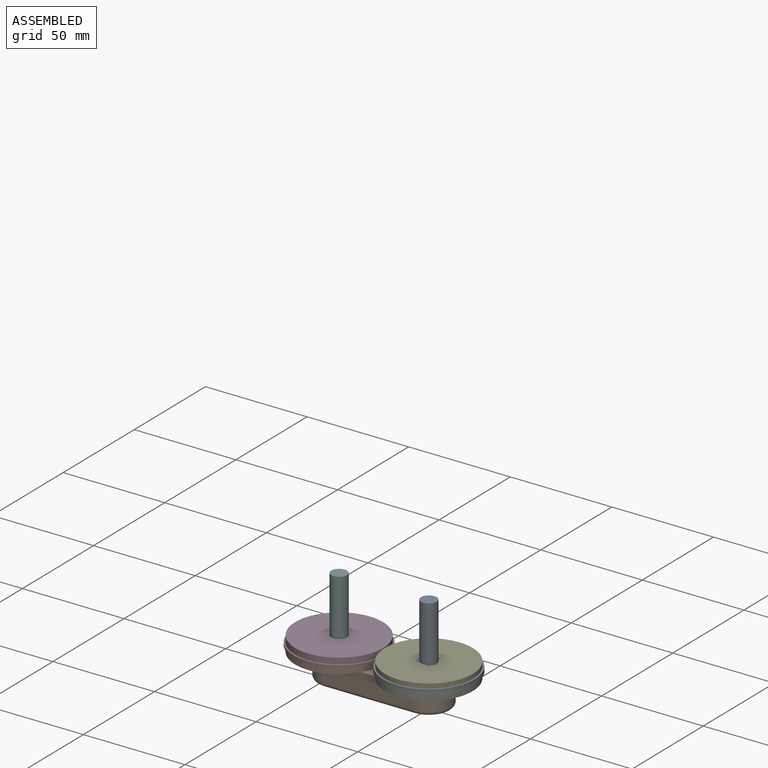
[diagram: assembled view]
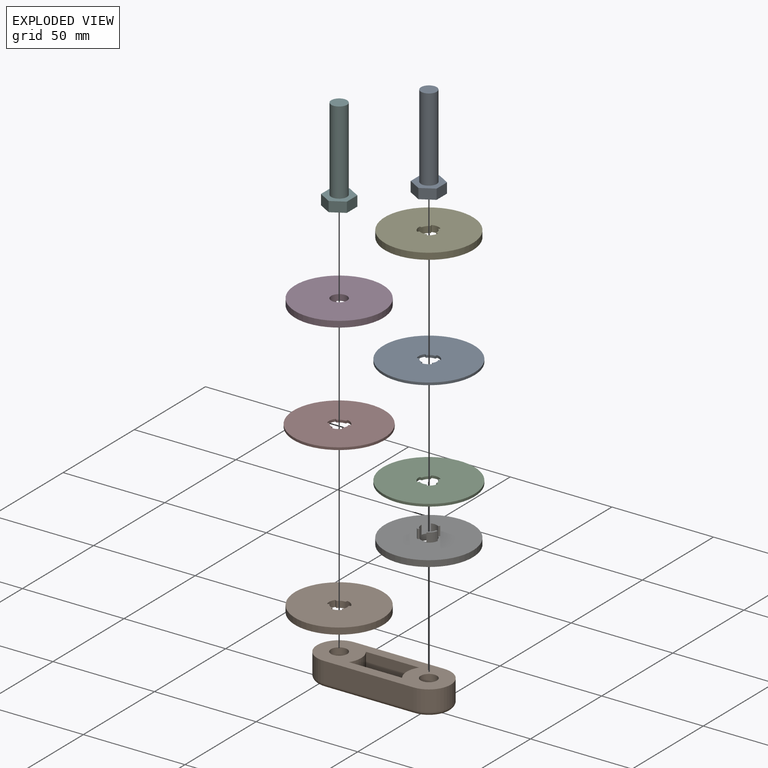
[diagram: exploded view]
GUIDED TOUR — MATED ASSEMBLY (Onshape document 2849e8b8282144786c56f79b, AutoMate assembly 2849e8b8282144786c56f79b_fd48bfa7a9732972396c4c1c_5a6b8118c9de24b8586b6d2c_default)

This assembly has 10 components, labeled P0..P9 below (a component is one placed occurrence of a part; the same part can appear more than once), held together by 9 mates. A mate is a constraint between two components; its type names the relative motion it leaves free:
  FASTENED — locks the two components together rigidly (no relative motion),
  REVOLUTE — leaves rotation about the listed axis free (a hinge).
Axis/direction vectors are unit vectors and 'through' points are millimeter coordinates, both in the assembly's world frame.

MATES
  1. REVOLUTE "Revolute 2": P6 <-> P1, axis (0.000, 0.000, -1.000) through (0.00, 0.00, 11.00) mm
  2. REVOLUTE "Revolute 5": P2 <-> P6, axis (0.000, 0.000, -1.000) through (0.00, 0.00, 14.00) mm
  3. REVOLUTE "Revolute 7": P0 <-> P2, axis (0.000, 0.000, -1.000) through (0.00, 0.00, 15.20) mm
  4. REVOLUTE "Revolute 6": P2 <-> P4, axis (0.000, 0.000, 1.000) through (0.00, 0.00, 15.20) mm
  5. REVOLUTE "Revolute 1": P9 <-> P1, axis (0.000, 0.000, -1.000) through (-44.15, 0.00, 11.00) mm
  6. FASTENED "Fastened 1": P8 <-> P1, direction (0.000, 0.000, 1.000) through (0.00, 0.00, 5.00) mm
  7. REVOLUTE "Revolute 3": P3 <-> P7, axis (0.000, 0.000, -1.000) through (-44.15, 0.00, 15.35) mm
  8. REVOLUTE "Revolute 4": P9 <-> P7, axis (0.000, 0.000, 1.000) through (-44.15, 0.00, 14.15) mm
  9. FASTENED "Fastened 2": P5 <-> P1, direction (0.000, 0.000, 1.000) through (-44.15, 0.00, 5.00) mm

ASSEMBLY ORDER
  1. P1 — the base component [order heuristic]
  2. P9 — core [order heuristic]
  3. P6 — core [order heuristic]
  4. P2 [order verified]
  5. P7 [order verified]
  6. P0 [order verified]
  7. P3 — core [order heuristic]
  8. P4 [order verified]
  9. P5 — core [order heuristic]
  10. P8 — core [order heuristic]
(P2, P4, P7 verified with a relaxed clearance tolerance: the source model stores slight part interference there.)
Order-tag legend:
  [order verified] — this step's position reverses a verified removal order: the component was checked to insert without passing through the ones already placed.
  [order heuristic] — the first 6 components form the assembly's core: parts whose collision-free extraction could not be verified, listed in mate-graph order.

Of the 10 components, 2 carry the full construction recipe — the FeatureScript program that regenerates the part's solid from scratch; the rest are supplied as boundary geometry only.
Each toured component is shown spotlighted twice — in the assembled view, then in the exploded view, where a leader line traces a displaced component back to its assembled socket (saturated green if recipe-attached, orange if geometry-only; every other component desaturated gray) — followed by its recipe or geometry summary and the mates that hold it.
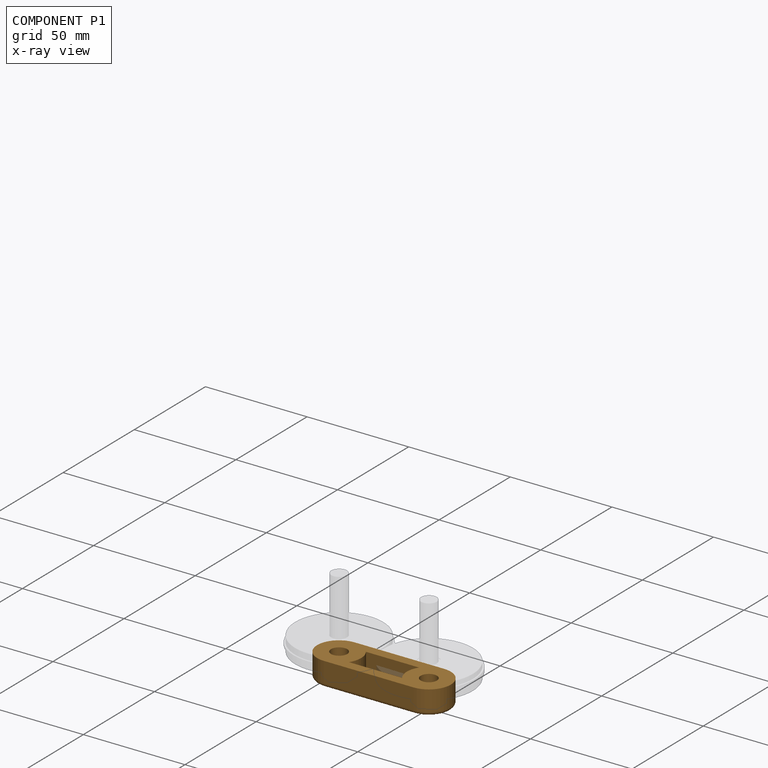
[diagram: component P1 — x-ray view]
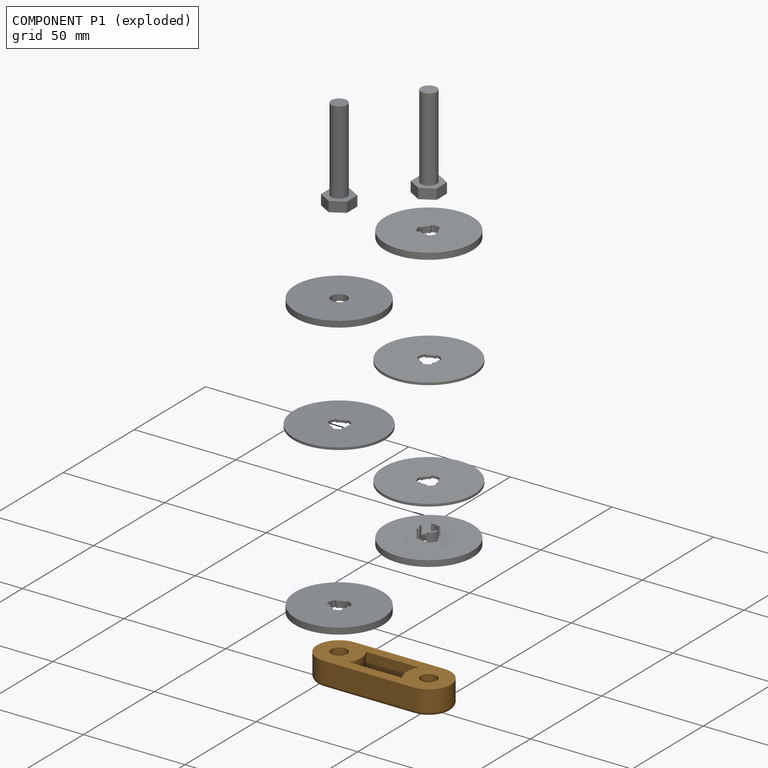
[diagram: component P1 — exploded]
COMPONENT P1 — geometry summary (no construction recipe available for this part):
  bounding box: 67.6 x 23.4 x 12.0 mm
  B-rep topology: 1 solid, 34 faces, 168 edges
  volume: 9899 mm^3 (52% of its bounding box)
  symmetry: 2-fold rotationally symmetric about the z axis; mirror-symmetric across its x mid-plane, y mid-plane
Held by: REVOLUTE mate "Revolute 2" to P6; REVOLUTE mate "Revolute 1" to P9; FASTENED mate "Fastened 1" to P8; FASTENED mate "Fastened 2" to P5.
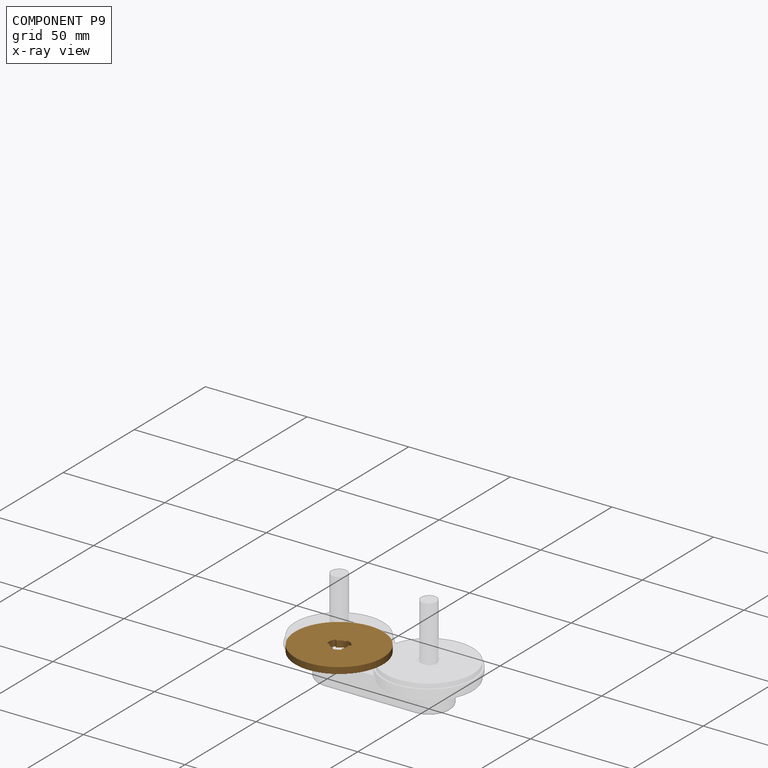
[diagram: component P9 — x-ray view]
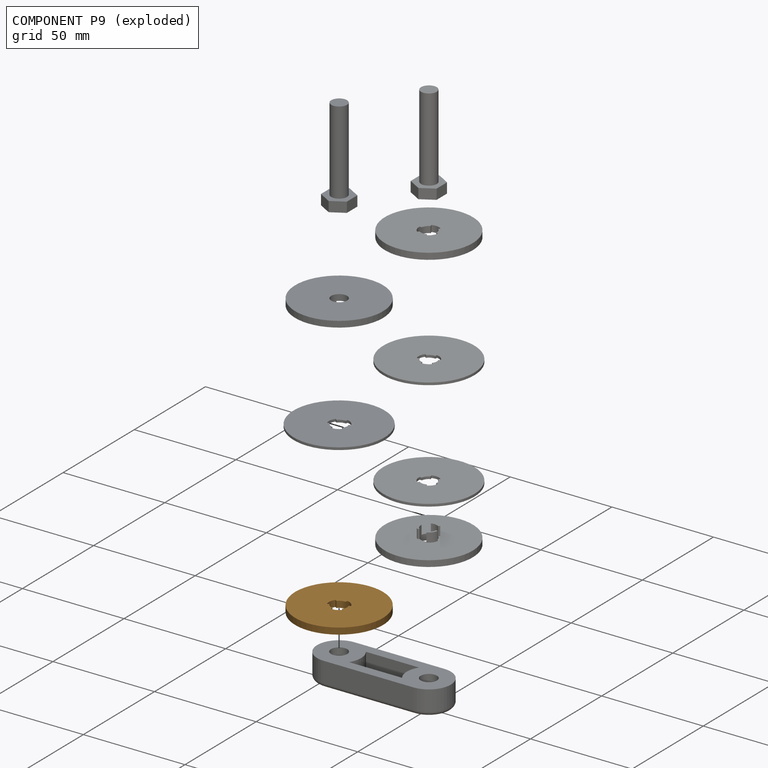
[diagram: component P9 — exploded]
COMPONENT P9 — geometry summary (no construction recipe available for this part):
  bounding box: 43.3 x 43.3 x 3.2 mm
  B-rep topology: 1 solid, 15 faces, 78 edges
  volume: 4430 mm^3 (75% of its bounding box)
  symmetry: 2-fold rotationally symmetric about the y axis; 3-fold rotationally symmetric about the z axis; mirror-symmetric across its x mid-plane, z mid-plane
Held by: REVOLUTE mate "Revolute 1" to P1; REVOLUTE mate "Revolute 4" to P7.
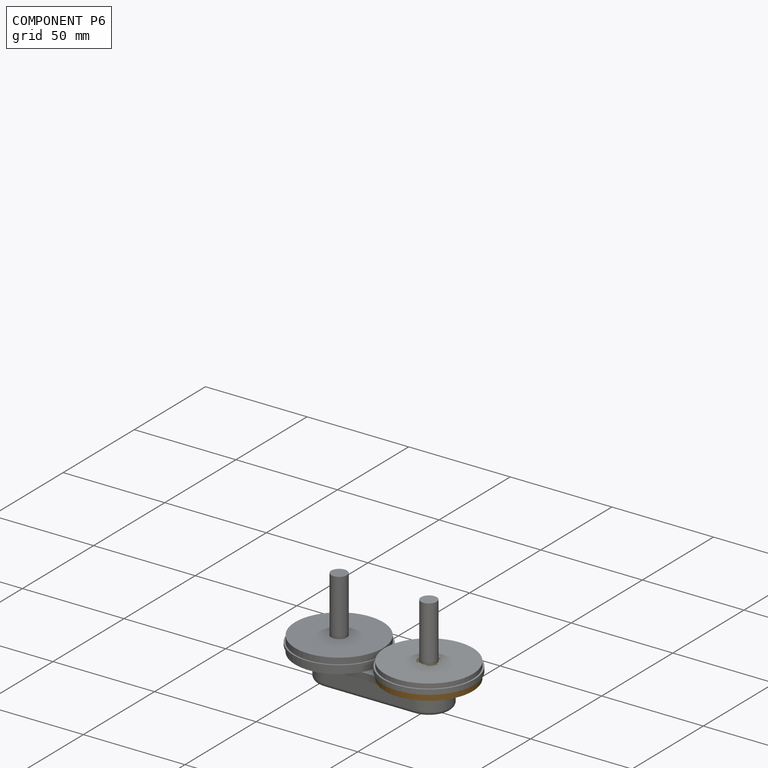
[diagram: component P6 — assembled]
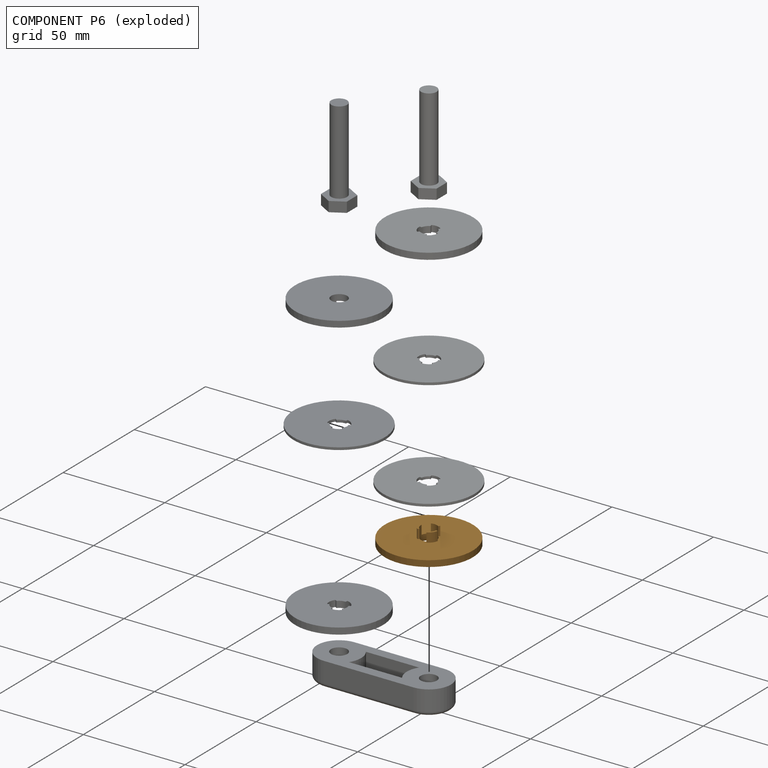
[diagram: component P6 — exploded]
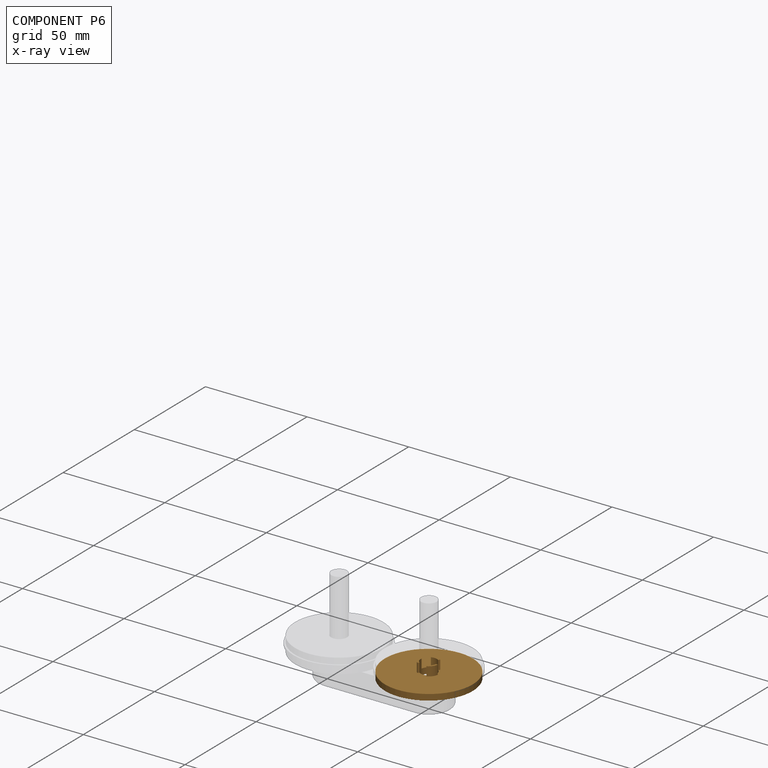
[diagram: component P6 — x-ray view]
COMPONENT P6 — geometry summary (no construction recipe available for this part):
  bounding box: 43.3 x 43.3 x 7.5 mm
  B-rep topology: 1 solid, 16 faces, 82 edges
  volume: 4320 mm^3 (31% of its bounding box)
  symmetry: 3-fold rotationally symmetric about the z axis; mirror-symmetric across its x mid-plane
Held by: REVOLUTE mate "Revolute 2" to P1; REVOLUTE mate "Revolute 5" to P2.
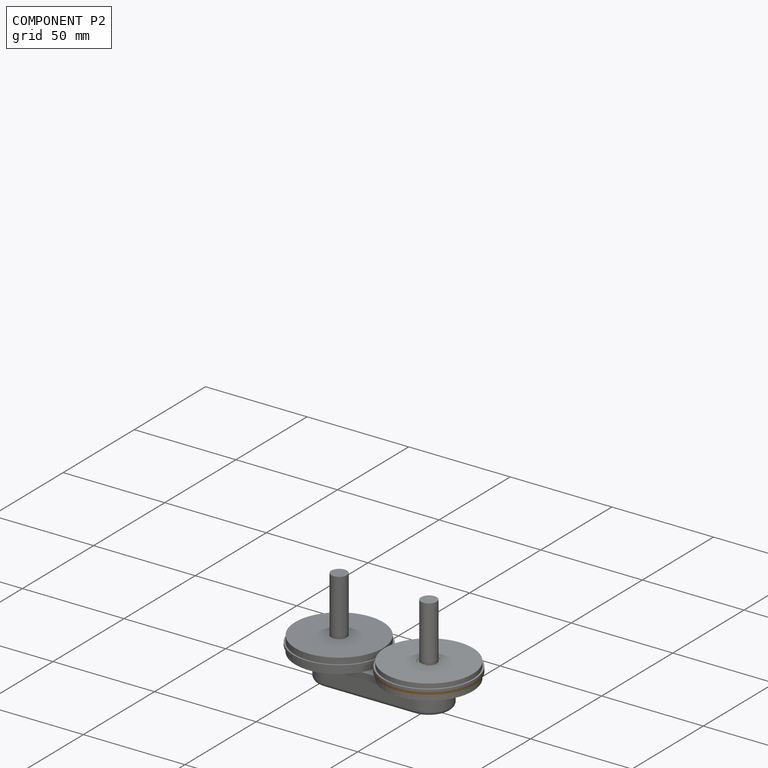
[diagram: component P2 — assembled]
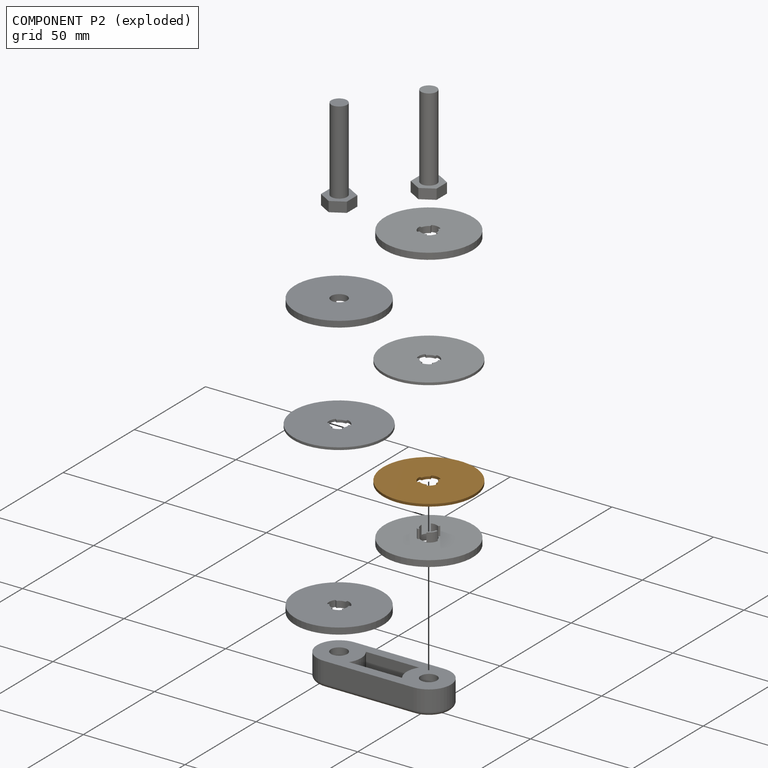
[diagram: component P2 — exploded]
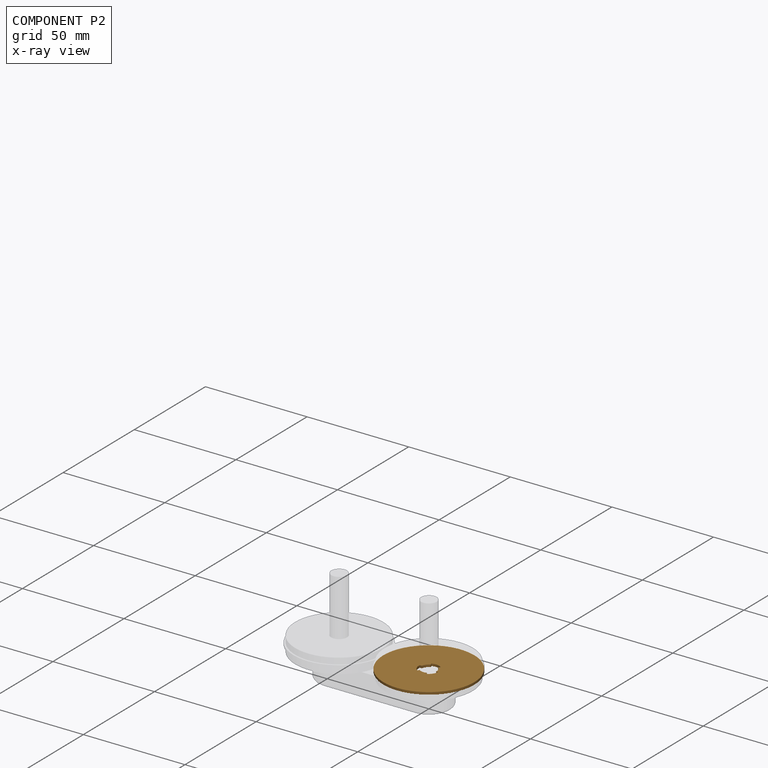
[diagram: component P2 — x-ray view]
COMPONENT P2 — geometry summary (no construction recipe available for this part):
  bounding box: 44.8 x 44.8 x 1.2 mm
  B-rep topology: 1 solid, 15 faces, 78 edges
  volume: 1816 mm^3 (75% of its bounding box)
  symmetry: 2-fold rotationally symmetric about the y axis; 3-fold rotationally symmetric about the z axis; mirror-symmetric across its x mid-plane, z mid-plane
Held by: REVOLUTE mate "Revolute 5" to P6; REVOLUTE mate "Revolute 7" to P0; REVOLUTE mate "Revolute 6" to P4.
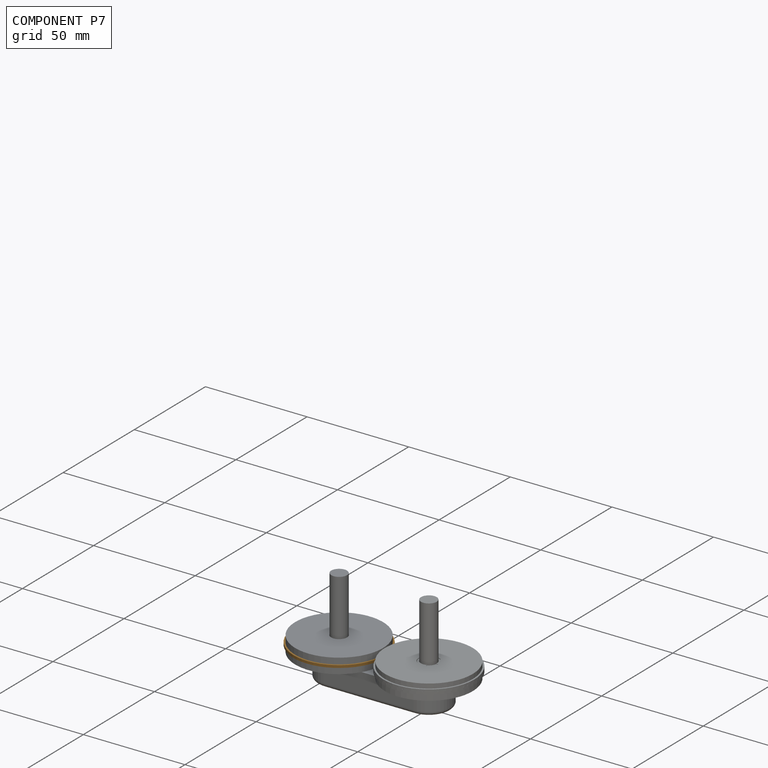
[diagram: component P7 — assembled]
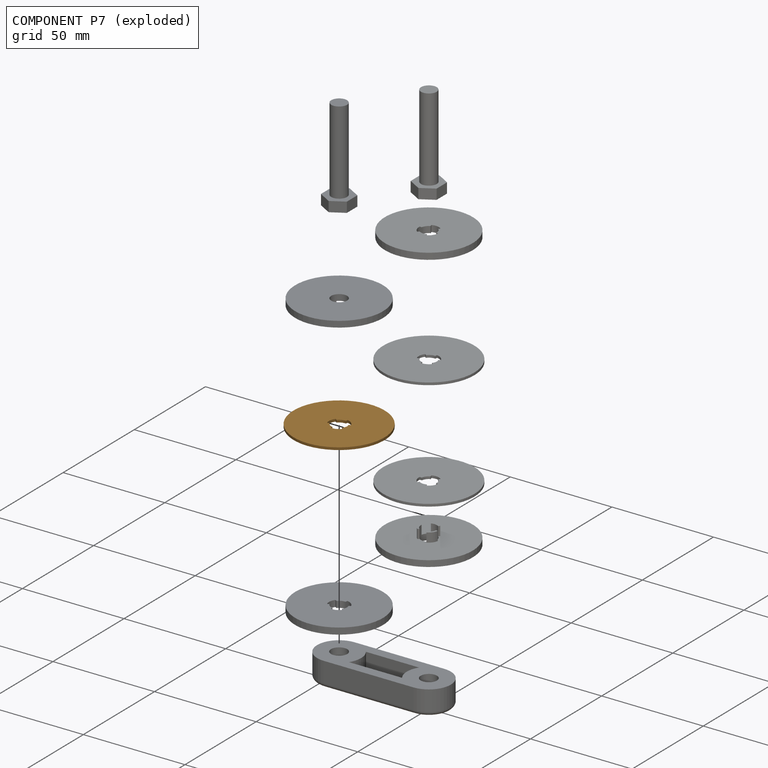
[diagram: component P7 — exploded]
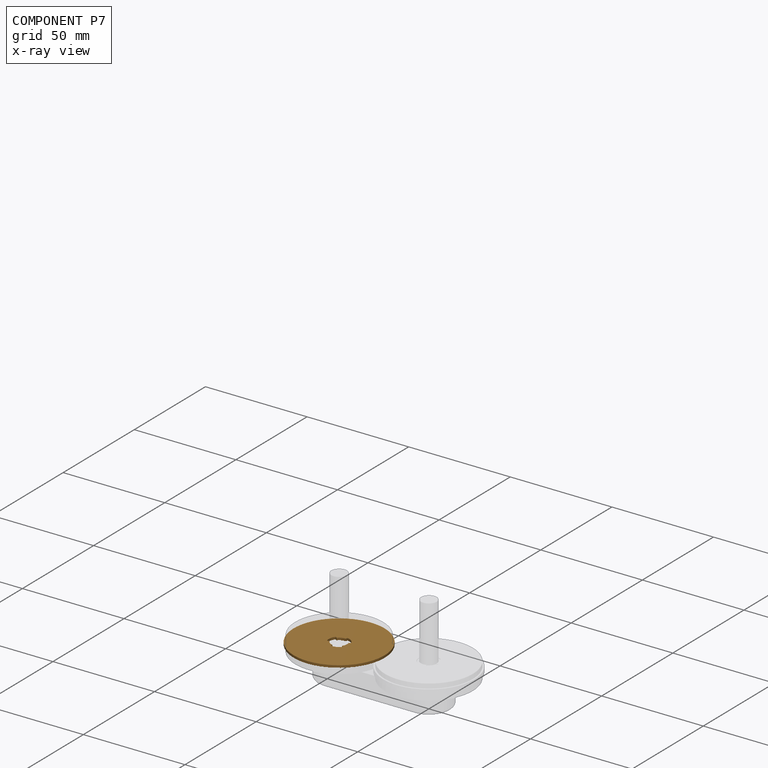
[diagram: component P7 — x-ray view]
COMPONENT P7 — geometry summary (no construction recipe available for this part):
  bounding box: 44.8 x 44.8 x 1.2 mm
  B-rep topology: 1 solid, 15 faces, 78 edges
  volume: 1816 mm^3 (75% of its bounding box)
  symmetry: 2-fold rotationally symmetric about the y axis; 3-fold rotationally symmetric about the z axis; mirror-symmetric across its x mid-plane, z mid-plane
Held by: REVOLUTE mate "Revolute 3" to P3; REVOLUTE mate "Revolute 4" to P9.
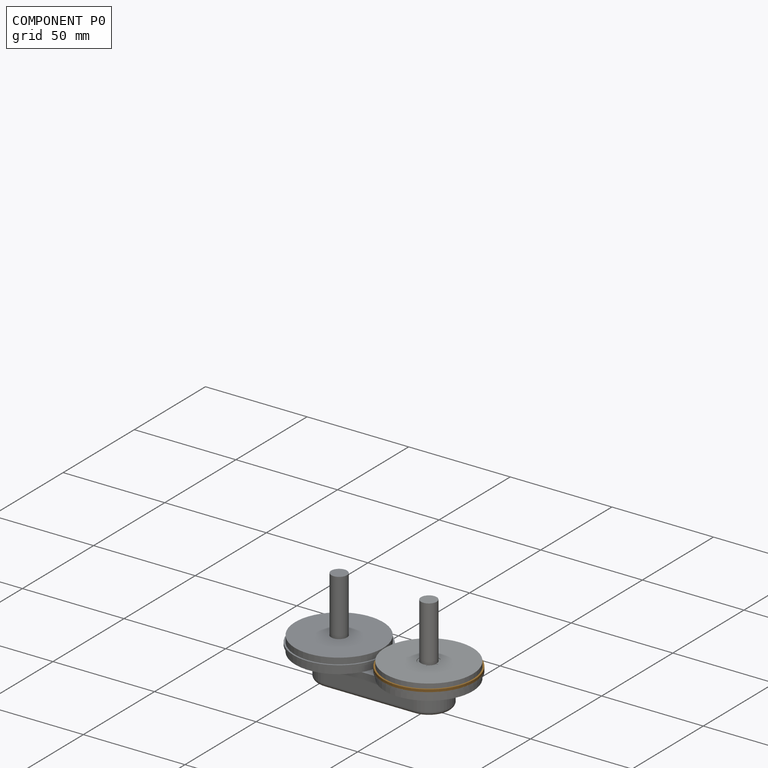
[diagram: component P0 — assembled]
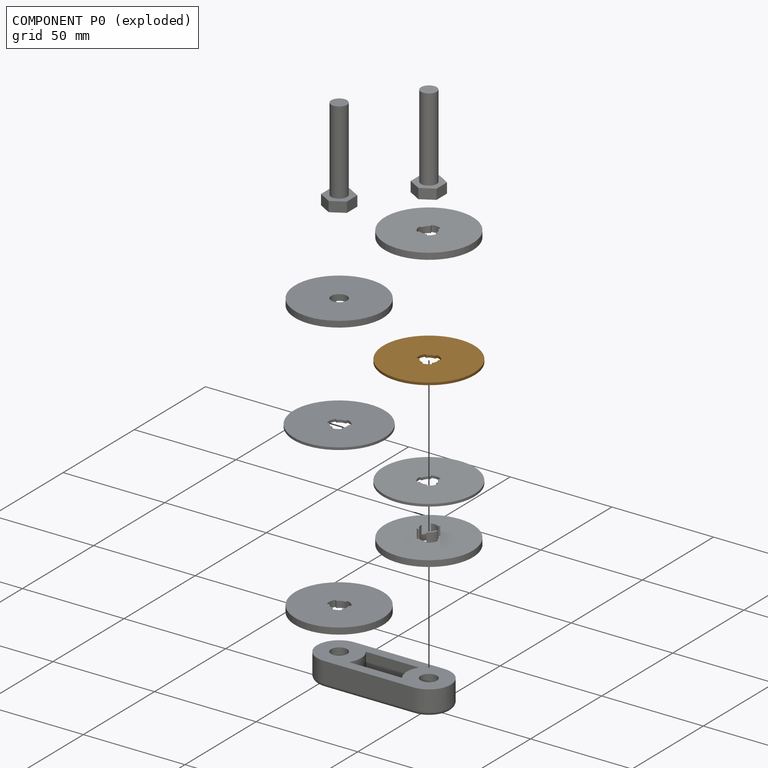
[diagram: component P0 — exploded]
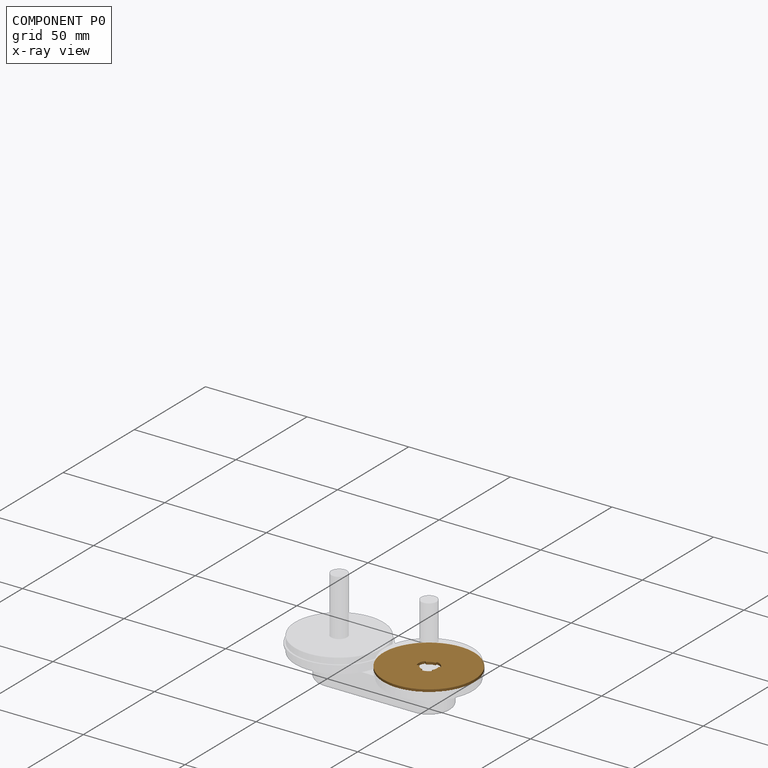
[diagram: component P0 — x-ray view]
COMPONENT P0 — geometry summary (no construction recipe available for this part):
  bounding box: 44.8 x 44.8 x 1.2 mm
  B-rep topology: 1 solid, 15 faces, 78 edges
  volume: 1816 mm^3 (75% of its bounding box)
  symmetry: 2-fold rotationally symmetric about the y axis; 3-fold rotationally symmetric about the z axis; mirror-symmetric across its x mid-plane, z mid-plane
Held by: REVOLUTE mate "Revolute 7" to P2.
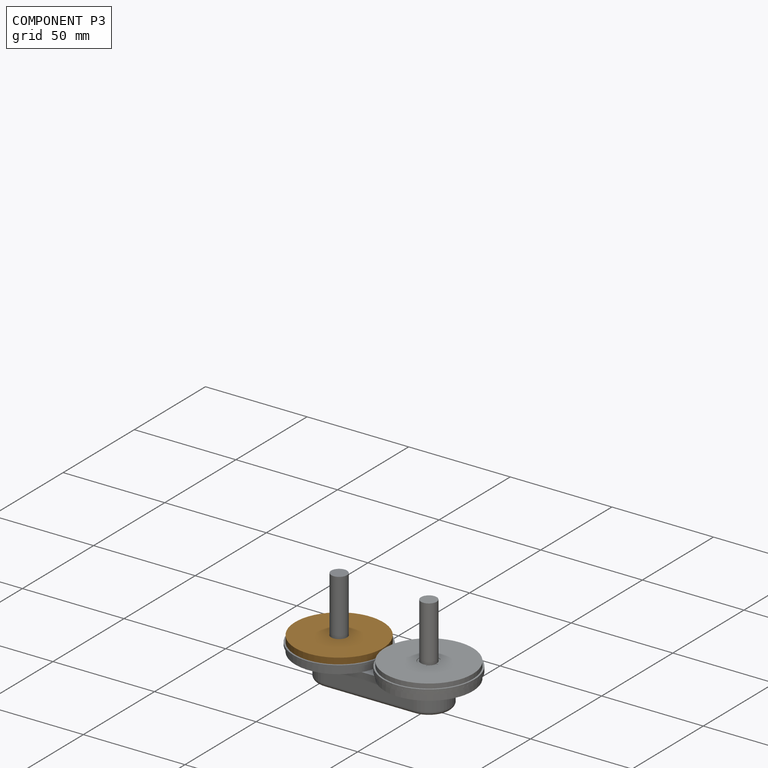
[diagram: component P3 — assembled]
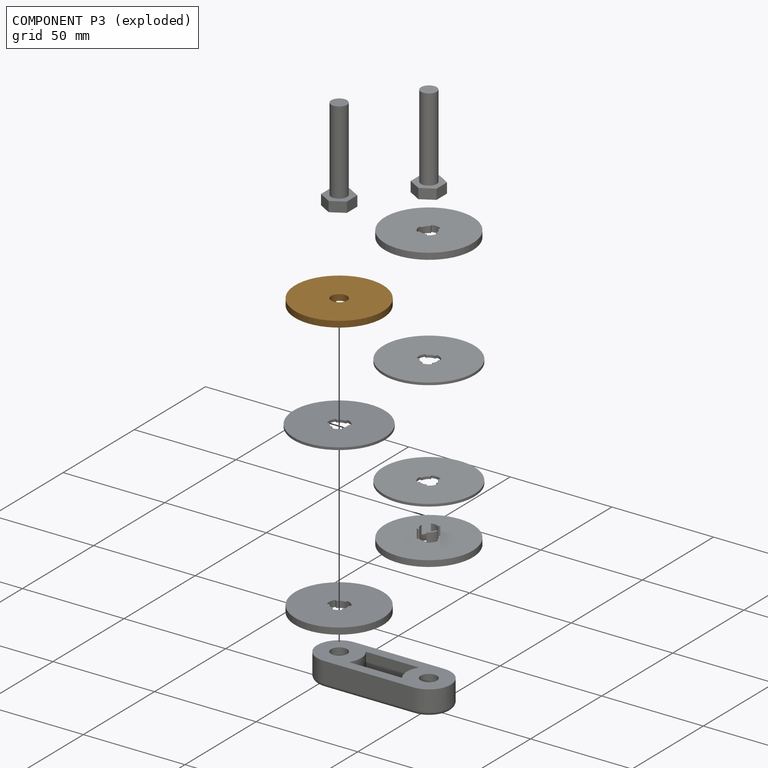
[diagram: component P3 — exploded]
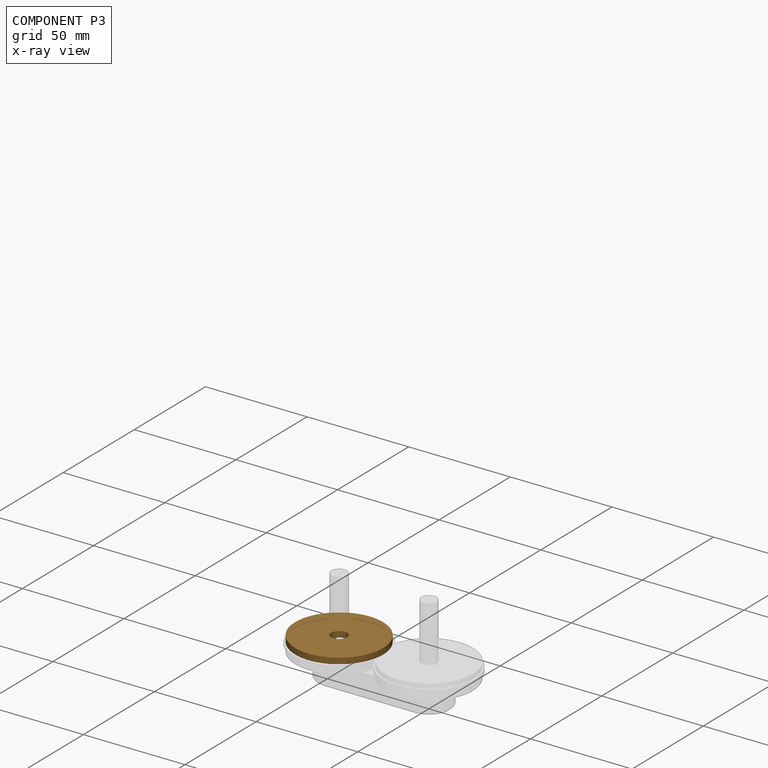
[diagram: component P3 — x-ray view]
COMPONENT P3 — geometry summary (no construction recipe available for this part):
  bounding box: 43.3 x 43.3 x 7.5 mm
  B-rep topology: 1 solid, 16 faces, 82 edges
  volume: 4320 mm^3 (31% of its bounding box)
  symmetry: 3-fold rotationally symmetric about the z axis; mirror-symmetric across its x mid-plane
Held by: REVOLUTE mate "Revolute 3" to P7.
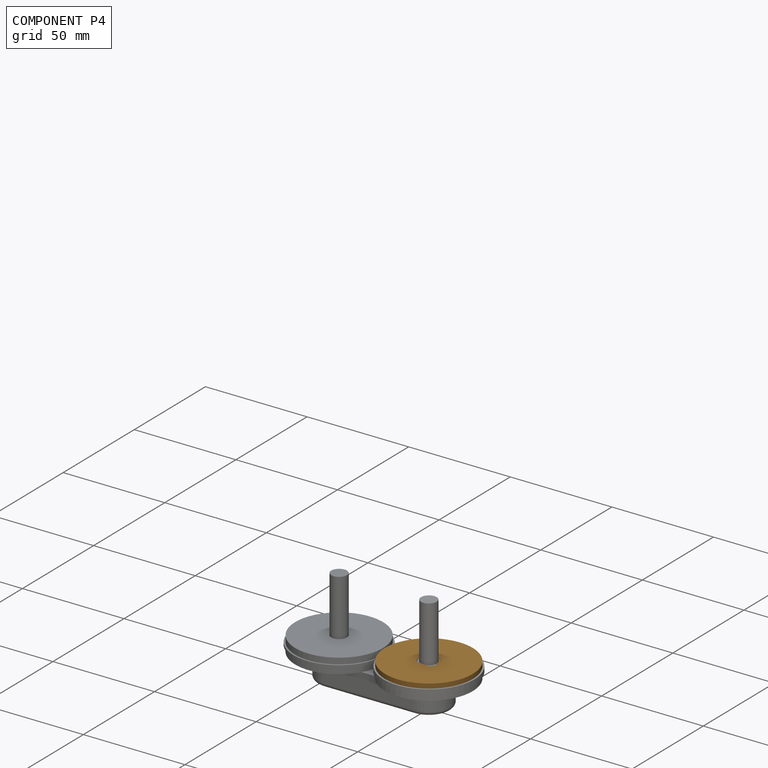
[diagram: component P4 — assembled]
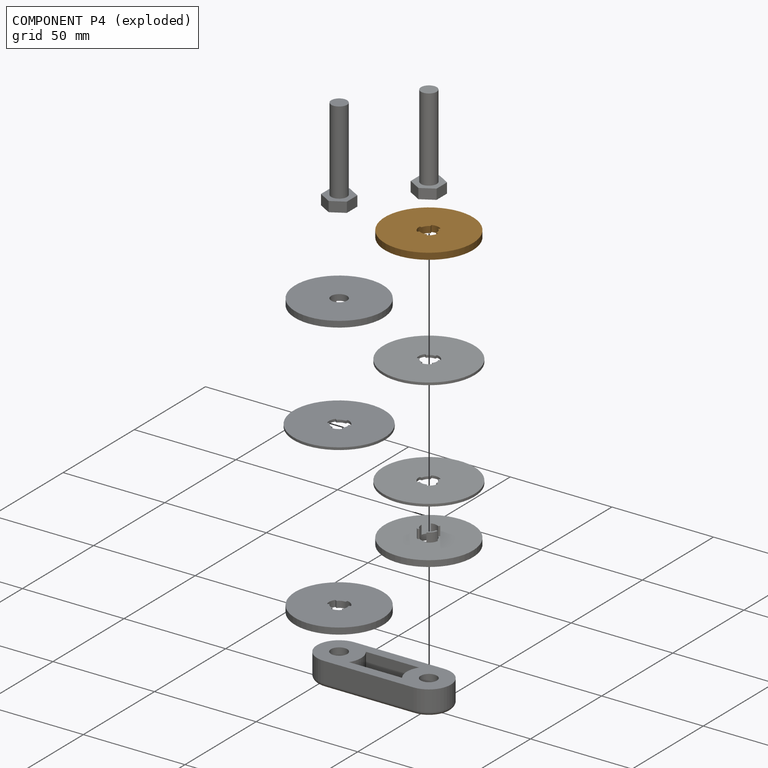
[diagram: component P4 — exploded]
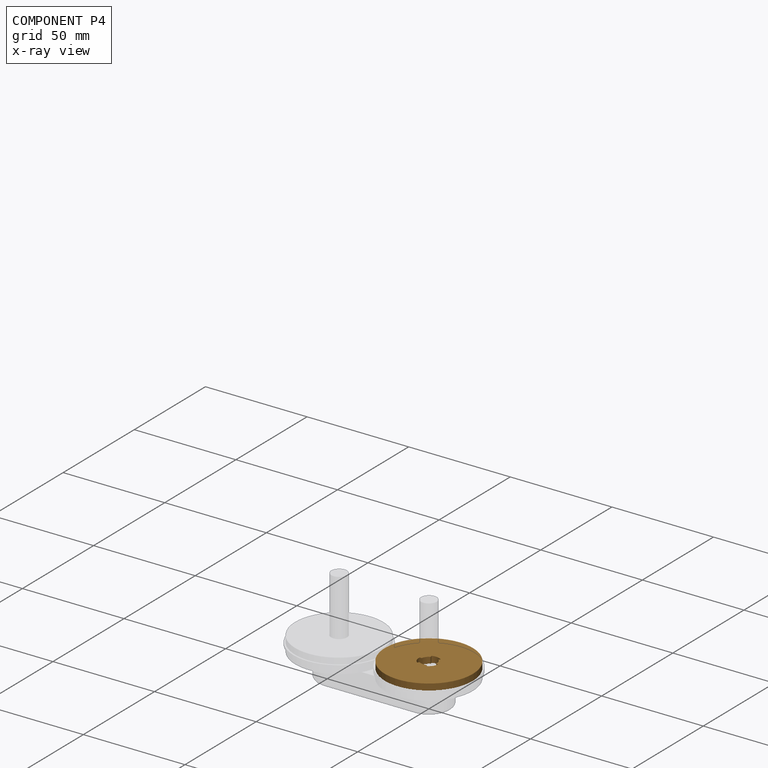
[diagram: component P4 — x-ray view]
COMPONENT P4 — geometry summary (no construction recipe available for this part):
  bounding box: 43.3 x 43.3 x 3.2 mm
  B-rep topology: 1 solid, 15 faces, 78 edges
  volume: 4430 mm^3 (75% of its bounding box)
  symmetry: 2-fold rotationally symmetric about the y axis; 3-fold rotationally symmetric about the z axis; mirror-symmetric across its x mid-plane, z mid-plane
Held by: REVOLUTE mate "Revolute 6" to P2.
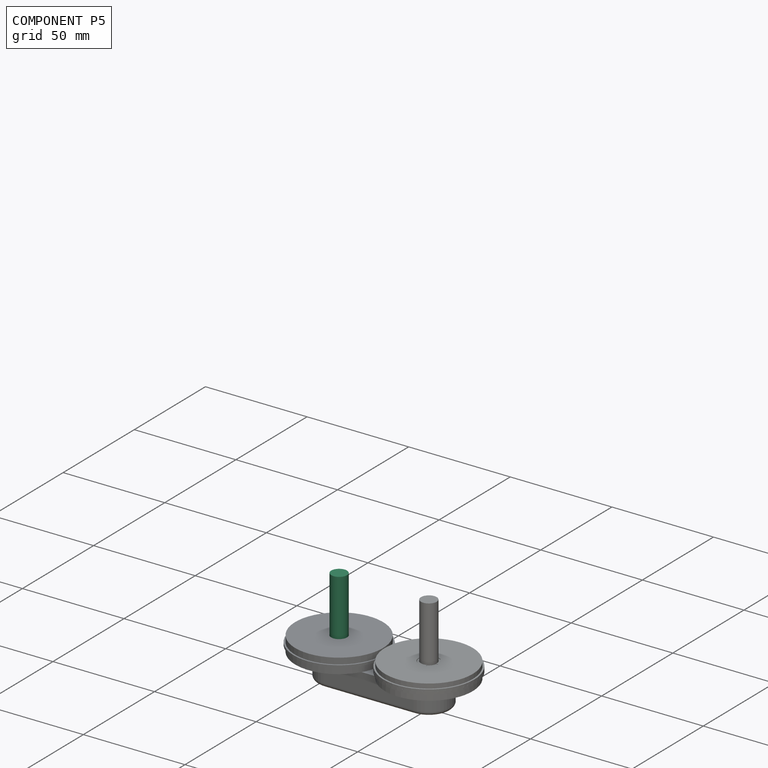
[diagram: component P5 — assembled]
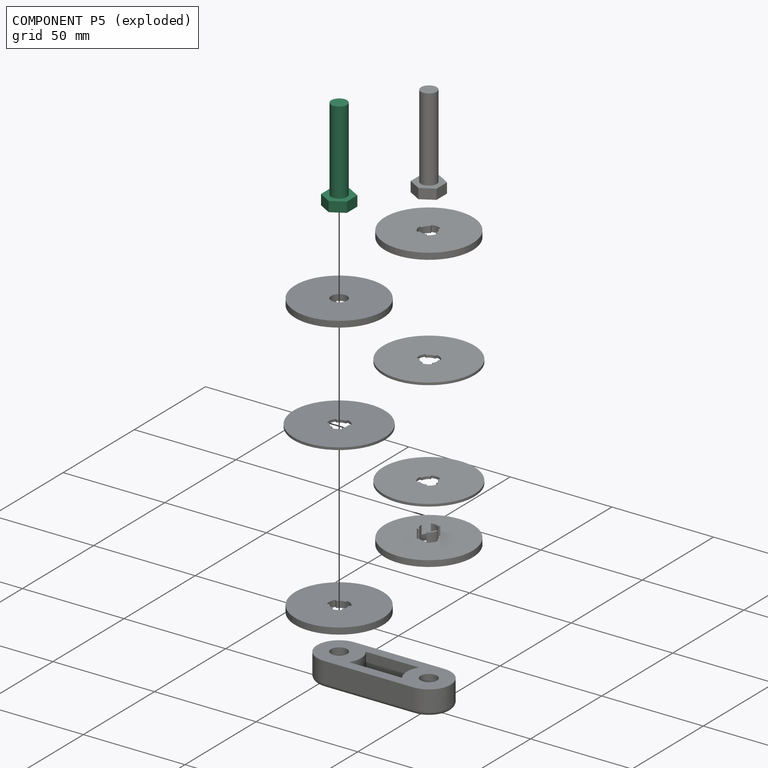
[diagram: component P5 — exploded]
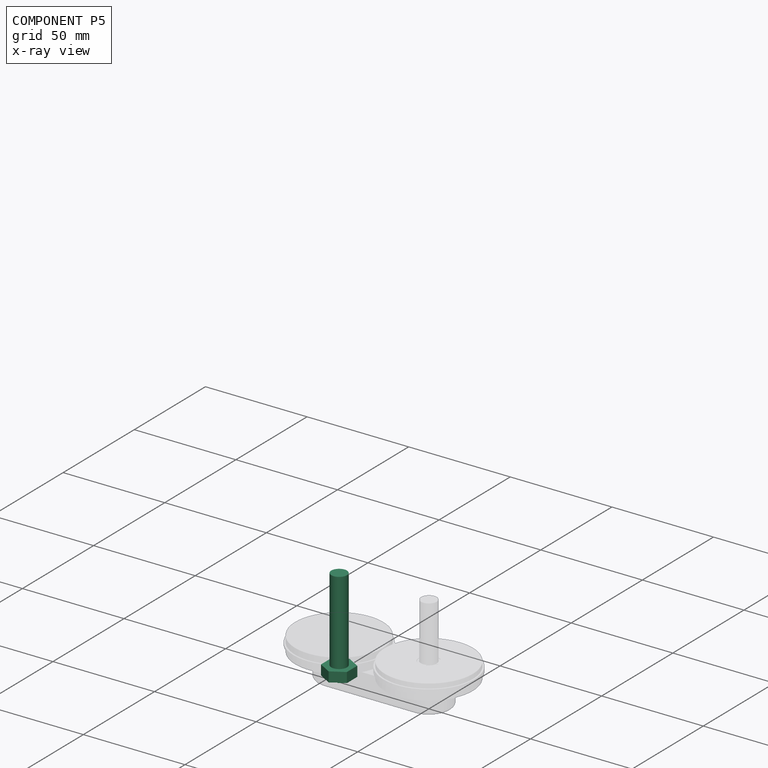
[diagram: component P5 — x-ray view]
COMPONENT P5 — recipe-attached (CADFS 00212924, mesh-verified: the recipe's output STEP matches this component's geometry to below the mesh-comparison resolution (tessellation chordal tolerance ~0.0749 mm)).
Held by: FASTENED mate "Fastened 2" to P1.
Construction recipe (FeatureScript — the CAD program that rebuilds this solid; sketch coordinates are in the units given by the * unit suffixes, e.g. mm):

FeatureScript 1511;
import(path : "onshape/std/geometry.fs", version : "1511.0");
import(path : "onshape/std/common.fs", version : "1511.0");
const mm = millimeter;
const VERTEX = EntityType.VERTEX;
const EDGE = EntityType.EDGE;
const FACE = EntityType.FACE;
const BODY = EntityType.BODY;
function v(x, y){return vector(x, y);}
function OD(order){return orderDisambiguation(order);}
function OSD(set){return originalSetDisambiguation(set);}
function TD(topology){return topologyDisambiguation(topology);}
function TDD(query){return trueDependencyDisambiguation(query);}
function sQuery(a, b, c) {return sketchEntityQuery(a, b, c);}

annotation { "Feature Type Name" : "Feature", "Feature Type Description" : "" }
export const myFeature = defineFeature(function(context is Context, id is Id, definition is map)
    precondition{}
    {
        {
            var Q0;
            Q0=qCreatedBy(makeId("Top.planeOp"),FACE);
            var sketch = newSketch(context, id + "F0", { "sketchPlane" : qUnion([Q0])});
            skCircle(sketch, "E0.cCircle", {"center": v(0, 0) * mm, "radius": 6.38 * mm, "construction": true});
            skLineSegment(sketch, "E0.0", {"start": v(6.38, 3.68) * mm, "end": v(6.38, -3.68) * mm});
            skLineSegment(sketch, "E0.1", {"start": v(6.38, -3.68) * mm, "end": v(0, -7.36) * mm});
            skLineSegment(sketch, "E0.2", {"start": v(0, -7.36) * mm, "end": v(-6.37, -3.68) * mm});
            skLineSegment(sketch, "E0.3", {"start": v(-6.37, -3.68) * mm, "end": v(-6.38, 3.68) * mm});
            skLineSegment(sketch, "E0.4", {"start": v(-6.38, 3.68) * mm, "end": v(0, 7.36) * mm});
            skLineSegment(sketch, "E0.5", {"start": v(0, 7.36) * mm, "end": v(6.37, 3.68) * mm});
            skPoint(sketch, "E0.0.midPoint", {"position": v(6.38, 0) * mm});
            skSolve(sketch);
        }
        {
            var Q0;
            Q0 = qSketchRegion(id + "F0", true);
            var Q1;
            Q1=makeQuery(id+"F0.imprint","IMPRINT",FACE,{"disambiguationData":[TD([[makeQuery(id+"F0.imprint","IMPRINT",EDGE,{"derivedFrom":sQuery(id+"F0.wireOp",EDGE,"E0.0")}),-1.0]])]});
            extrude(context, id + "F1", {"entities" : qUnion([Q0, Q1]), "depth" : 5 * mm});
        }
        {
            var Q0;
            Q0=makeQuery(id+"F1.opExtrude","CAP_FACE",FACE,{"disambiguationData":[OSD([sQuery(id+"F0.wireOp",EDGE,"E0.0"),sQuery(id+"F0.wireOp",EDGE,"E0.1"),sQuery(id+"F0.wireOp",EDGE,"E0.2"),sQuery(id+"F0.wireOp",EDGE,"E0.3"),sQuery(id+"F0.wireOp",EDGE,"E0.4"),sQuery(id+"F0.wireOp",EDGE,"E0.5")])],"isStart":true});
            var sketch = newSketch(context, id + "F2", { "sketchPlane" : qUnion([Q0])});
            skCircle(sketch, "E1", {"center": v(0, 0) * mm, "radius": 3.88 * mm});
            skSolve(sketch);
        }
        {
            var Q0;
            Q0 = qSketchRegion(id + "F2", true);
            extrude(context, id + "F3", {"entities" : qUnion([Q0]), "operationType" : NewBodyOperationType.ADD, "depth" : 41 * mm});
        }
    });
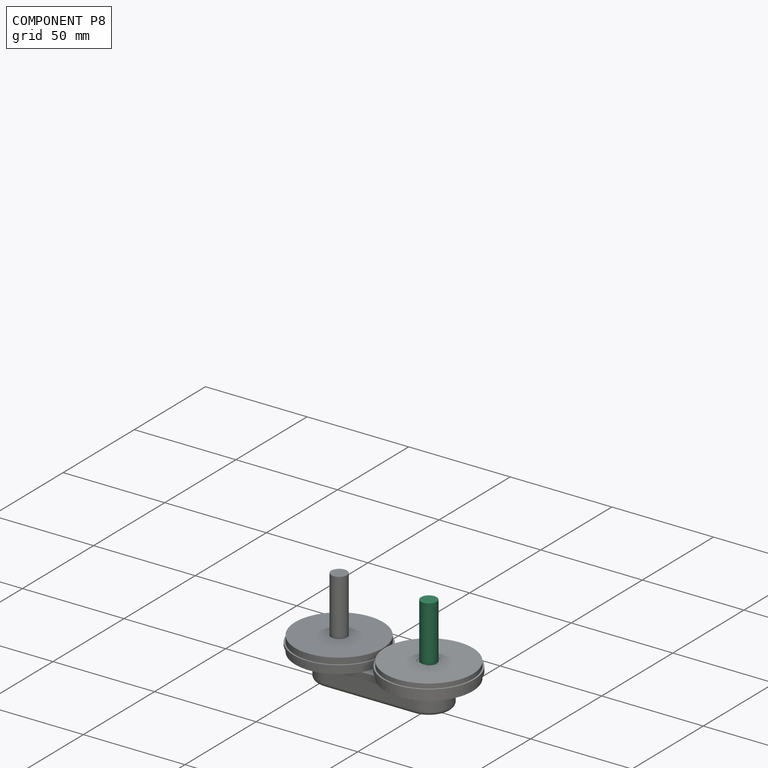
[diagram: component P8 — assembled]
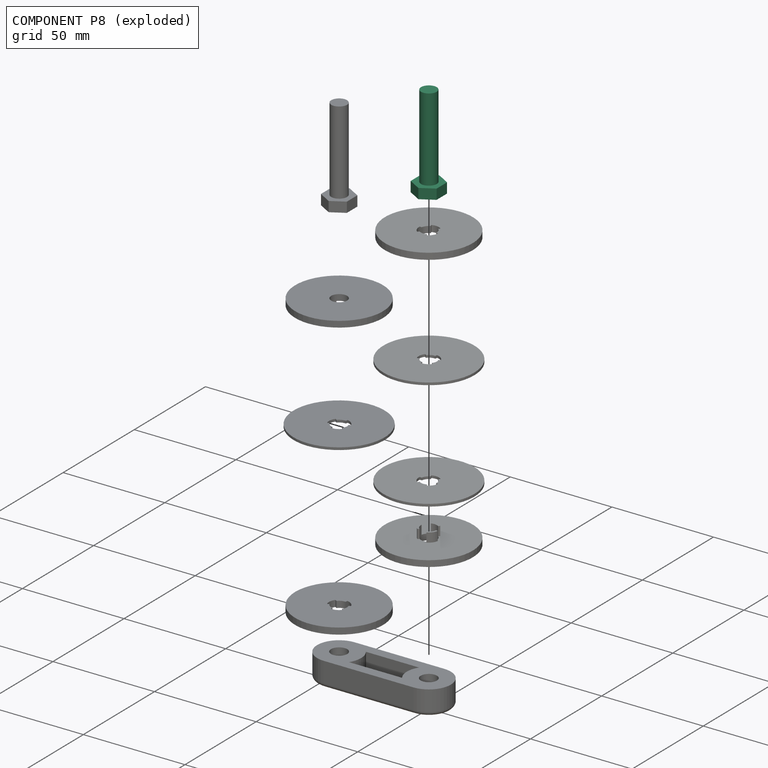
[diagram: component P8 — exploded]
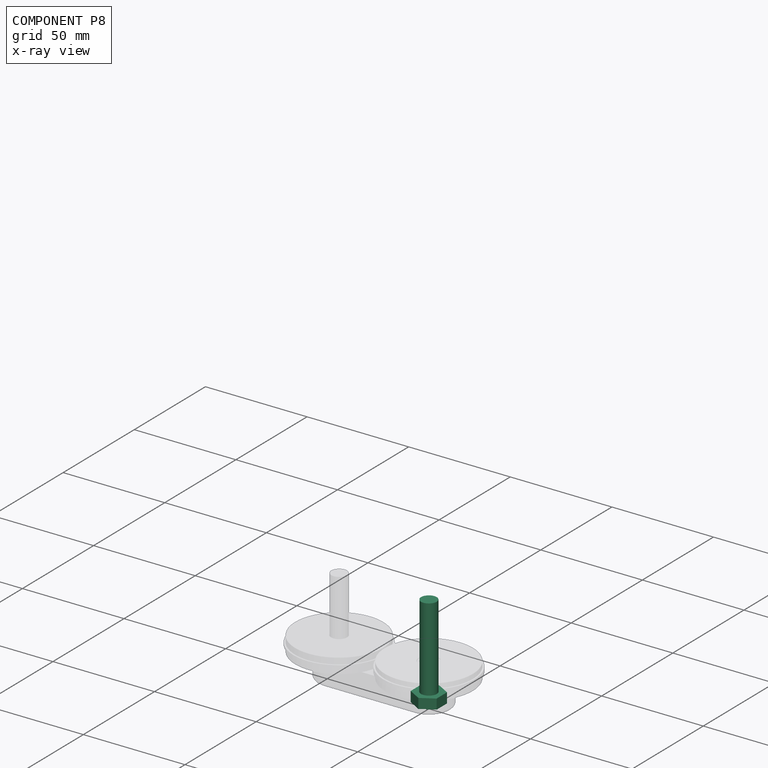
[diagram: component P8 — x-ray view]
COMPONENT P8 — same part as P5 (CADFS 00212924); its construction recipe is shown at P5.
Held by: FASTENED mate "Fastened 1" to P1.
PROVENANCE & LICENSES
Assembly (occurrences, transforms, mates, per-part STEP geometry): AutoMate dataset, Zenodo record 7776208, CC0.
Construction recipes: CADFS (HuggingFace VladPyatov/CADFS, CC-BY-4.0, layered over the ABC dataset), FeatureScript reconstruction programs keyed by ABC model id.
Join: ABC meta listings map ABC model id -> Onshape documentId; within a shared document, parts are matched by geometric signature (bounding-box dims + volume at 0.1% relative tolerance, exact B-rep face/solid counts).
Verification: 2 of this assembly's 10 components carry a recipe attachment, and every attachment is mesh-verified: the CADFS STEP and the AutoMate member STEP were compared as meshes in their shared local frame (symmetric sampled-point-to-mesh distance); worst across the 2 attachments: below the mesh-comparison resolution (tessellation chordal tolerance ~0.0749 mm) on a 50 mm part.
Renders: orthographic iso camera (az 35 / el 25); the floor grid conveys scale (grid pitch printed in each image; no ruler). In the exploded view each component is displaced by its stored offset vector: the offsets alone carry the explosion direction (mate normal/axis signs are not orientation cues and do not encode it), and separation distances are assigned per mate-chain, not proportionally to assembly-order depth.
